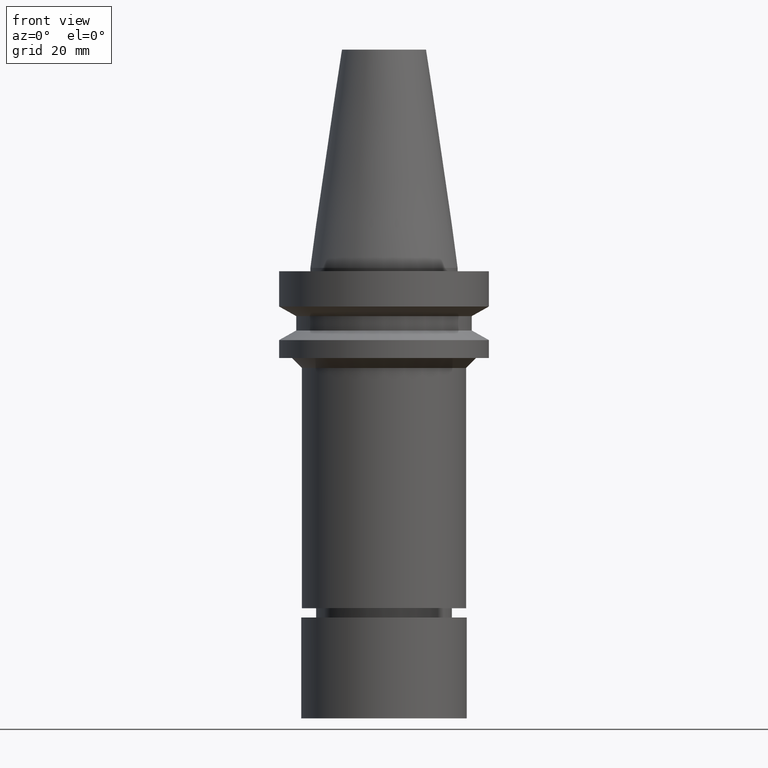
[diagram: clean part render]
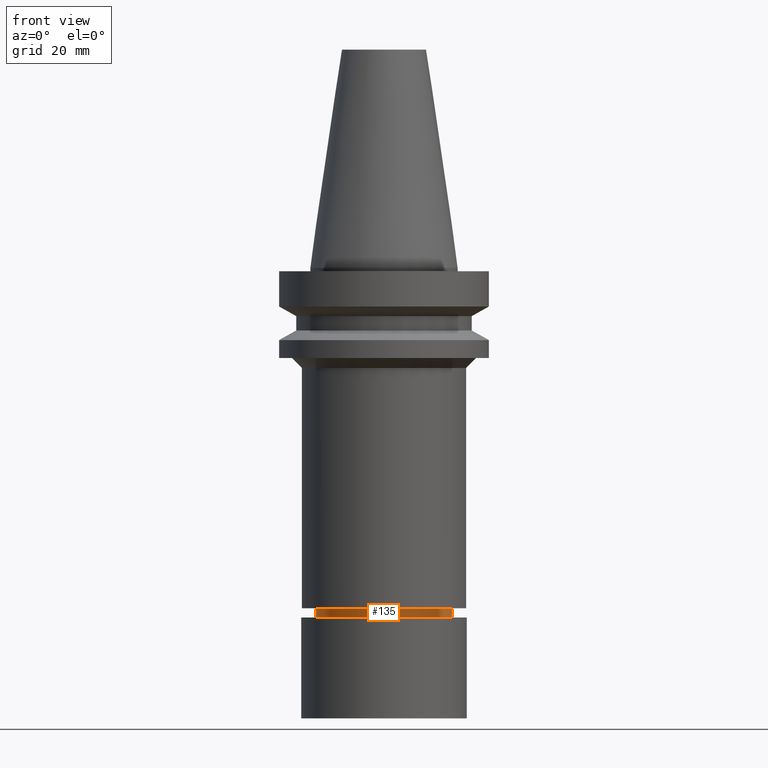
[diagram: same view with one face highlighted and labeled with its STEP entity id]
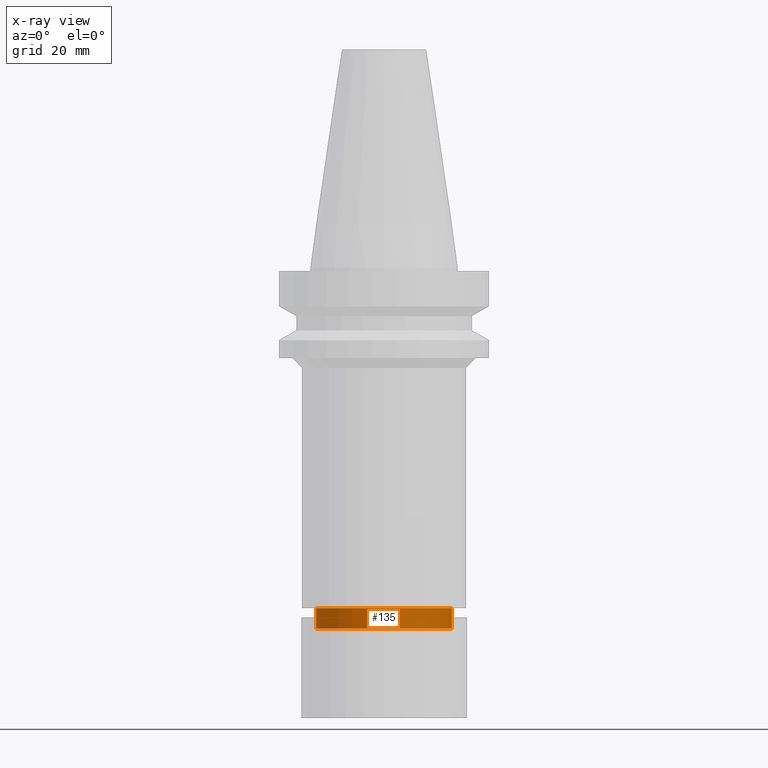
[diagram: x-ray of the same camera — body ghosted, the highlighted face saturated]
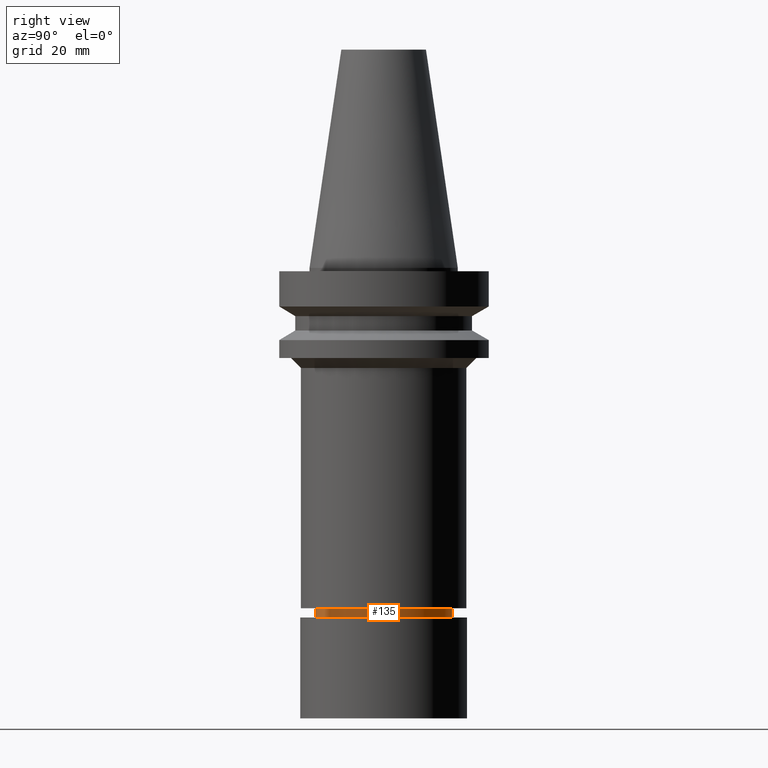
[diagram: same view with one face highlighted and labeled with its STEP entity id]
A machine part, front view. The second image highlights one B-rep face of the part: STEP entity #135.
The next image is the same camera in x-ray: the body ghosted, the highlighted face saturated — about 0% of this face is hidden behind the body in this view.
A second angle (right view) of the same face is appended — the face is thin or edge-on in the first view.
In plain terms, the highlighted cylindrical surface (bore or boss wall) has radius 20.5 mm, axis along (0, -0, -1).
Its self-contained STEP definition (entity closure, byte-faithful):
#92=EDGE_CURVE('Unnamed[1]',#224,#224,#225,.T.);
#135=ADVANCED_FACE('Unnamed[1]',(#291,#292),#293,.T.);
#144=EDGE_CURVE('Unnamed[1]',#306,#306,#307,.T.);
#224=VERTEX_POINT('',#404);
#225=CIRCLE('',#405,20.5000000000011);
#291=FACE_BOUND('',#488,.T.);
#292=FACE_BOUND('',#489,.T.);
#293=CYLINDRICAL_SURFACE('',#490,20.499999999996);
#306=VERTEX_POINT('',#507);
#307=CIRCLE('',#508,20.499999999991);
#404=CARTESIAN_POINT('',(6.62604227973845E-015,20.5000000000011,-108.211482434801));
#405=AXIS2_PLACEMENT_3D('',#602,#603,#604);
#488=EDGE_LOOP('',(#677));
#489=EDGE_LOOP('',(#678));
#490=AXIS2_PLACEMENT_3D('',#679,#680,#681);
#507=CARTESIAN_POINT('',(6.24570832399484E-015,20.4999999999911,-102.000157569404));
#508=AXIS2_PLACEMENT_3D('',#694,#695,#696);
#602=CARTESIAN_POINT('',(6.62604227973845E-015,7.56000732768328E-014,-108.211482434801));
#603=DIRECTION('',(6.12323399573677E-017,-8.9814939714193E-018,-1.0));
#604=DIRECTION('',(-4.27719483858603E-033,1.0,-8.9814939714193E-018));
#677=ORIENTED_EDGE('',*,*,#92,.F.);
#678=ORIENTED_EDGE('',*,*,#144,.T.);
#679=CARTESIAN_POINT('',(6.43587530186665E-015,7.56279667652493E-014,-105.105820002103));
#680=DIRECTION('',(6.12323399573677E-017,-8.98149397141931E-018,-1.0));
#681=DIRECTION('',(-4.27719483858603E-033,1.0,-8.98149397141931E-018));
#694=CARTESIAN_POINT('',(6.24570832399484E-015,7.56558602536659E-014,-102.000157569404));
#695=DIRECTION('',(6.12323399573677E-017,-8.98149397141931E-018,-1.0));
#696=DIRECTION('',(-4.27719483858603E-033,1.0,-8.98149397141931E-018));